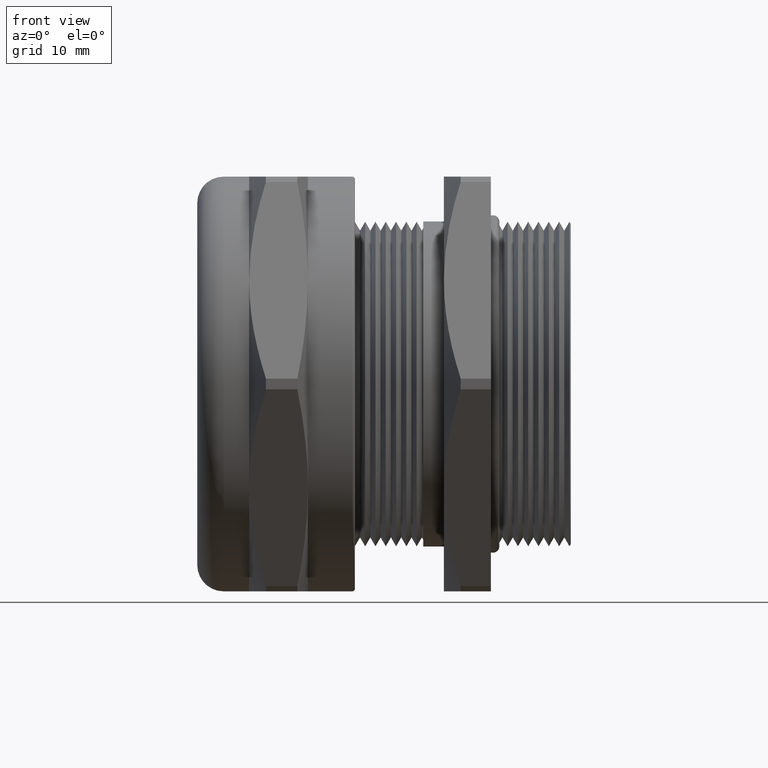
[diagram: clean part render]
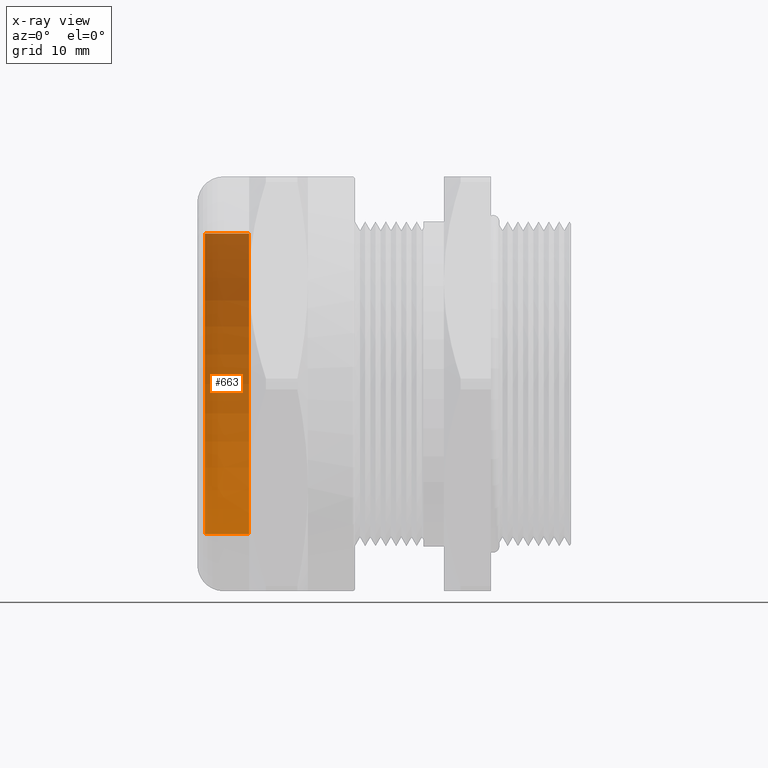
[diagram: x-ray — body ghosted, one internal face saturated and labeled with its STEP entity id]
A machine part, front view, then the same camera in x-ray: the body is ghosted and one INTERNAL B-rep face — a face not visible from any outside direction — is saturated and labeled: STEP entity #663.
In plain terms, the highlighted cylindrical surface (partial cylindrical patch) has radius 14.8241 mm, axis along (1, 0, 0).
Its self-contained STEP definition (entity closure, byte-faithful):
#657 = VERTEX_POINT ( 'NONE', #2400 ) ;
#659 = EDGE_CURVE ( 'NONE', #660, #657, #2399, .T. ) ;
#660 = VERTEX_POINT ( 'NONE', #2394 ) ;
#663 = ADVANCED_FACE ( 'NONE', ( #2388 ), #2387, .T. ) ;
#664 = EDGE_LOOP ( 'NONE', ( #665, #666, #669, #672 ) ) ;
#665 = ORIENTED_EDGE ( 'NONE', *, *, #659, .T. ) ;
#666 = ORIENTED_EDGE ( 'NONE', *, *, #667, .T. ) ;
#667 = EDGE_CURVE ( 'NONE', #657, #668, #2444, .T. ) ;
#668 = VERTEX_POINT ( 'NONE', #2440 ) ;
#669 = ORIENTED_EDGE ( 'NONE', *, *, #670, .F. ) ;
#670 = EDGE_CURVE ( 'NONE', #671, #668, #2439, .T. ) ;
#671 = VERTEX_POINT ( 'NONE', #2434 ) ;
#672 = ORIENTED_EDGE ( 'NONE', *, *, #673, .F. ) ;
#673 = EDGE_CURVE ( 'NONE', #660, #671, #2433, .T. ) ;
#2383 = DIRECTION ( 'NONE',  ( 0.0000000000000000000, 0.0000000000000000000, -1.000000000000000000 ) ) ;
#2384 = DIRECTION ( 'NONE',  ( 1.000000000000000000, 0.0000000000000000000, 0.0000000000000000000 ) ) ;
#2385 = CARTESIAN_POINT ( 'NONE',  ( 0.5452584728366800500, 0.0000000000000000000, 0.0000000000000000000 ) ) ;
#2386 = AXIS2_PLACEMENT_3D ( 'NONE', #2385, #2384, #2383 ) ;
#2387 = CYLINDRICAL_SURFACE ( 'NONE', #2386, 0.5836249999999999500 ) ;
#2388 = FACE_OUTER_BOUND ( 'NONE', #664, .T. ) ;
#2394 = CARTESIAN_POINT ( 'NONE',  ( -0.6949999999999998400, 0.0000000000000000000, -0.5836250000000000600 ) ) ;
#2395 = DIRECTION ( 'NONE',  ( 0.0000000000000000000, 0.0000000000000000000, -1.000000000000000000 ) ) ;
#2396 = DIRECTION ( 'NONE',  ( 1.000000000000000000, 0.0000000000000000000, 0.0000000000000000000 ) ) ;
#2397 = CARTESIAN_POINT ( 'NONE',  ( -0.6949999999999998400, 0.0000000000000000000, 0.0000000000000000000 ) ) ;
#2398 = AXIS2_PLACEMENT_3D ( 'NONE', #2397, #2396, #2395 ) ;
#2399 = CIRCLE ( 'NONE', #2398, 0.5836250000000000600 ) ;
#2400 = CARTESIAN_POINT ( 'NONE',  ( -0.6949999999999998400, 7.147344881523741700E-017, 0.5836250000000001700 ) ) ;
#2430 = DIRECTION ( 'NONE',  ( 1.000000000000000000, 0.0000000000000000000, 0.0000000000000000000 ) ) ;
#2431 = VECTOR ( 'NONE', #2430, 39.37007874015748100 ) ;
#2432 = CARTESIAN_POINT ( 'NONE',  ( 0.5452584728366800500, 0.0000000000000000000, -0.5836249999999999500 ) ) ;
#2433 = LINE ( 'NONE', #2432, #2431 ) ;
#2434 = CARTESIAN_POINT ( 'NONE',  ( -0.5234999999999998500, 0.0000000000000000000, -0.5836249999999999500 ) ) ;
#2435 = DIRECTION ( 'NONE',  ( 0.0000000000000000000, 0.0000000000000000000, -1.000000000000000000 ) ) ;
#2436 = DIRECTION ( 'NONE',  ( 1.000000000000000000, 0.0000000000000000000, 0.0000000000000000000 ) ) ;
#2437 = CARTESIAN_POINT ( 'NONE',  ( -0.5234999999999998500, 0.0000000000000000000, 0.0000000000000000000 ) ) ;
#2438 = AXIS2_PLACEMENT_3D ( 'NONE', #2437, #2436, #2435 ) ;
#2439 = CIRCLE ( 'NONE', #2438, 0.5836249999999999500 ) ;
#2440 = CARTESIAN_POINT ( 'NONE',  ( -0.5234999999999998500, 7.147344881523739300E-017, 0.5836249999999999500 ) ) ;
#2441 = DIRECTION ( 'NONE',  ( 1.000000000000000000, 0.0000000000000000000, 0.0000000000000000000 ) ) ;
#2442 = VECTOR ( 'NONE', #2441, 39.37007874015748100 ) ;
#2443 = CARTESIAN_POINT ( 'NONE',  ( 0.5452584728366800500, 7.147344881523739300E-017, 0.5836249999999999500 ) ) ;
#2444 = LINE ( 'NONE', #2443, #2442 ) ;